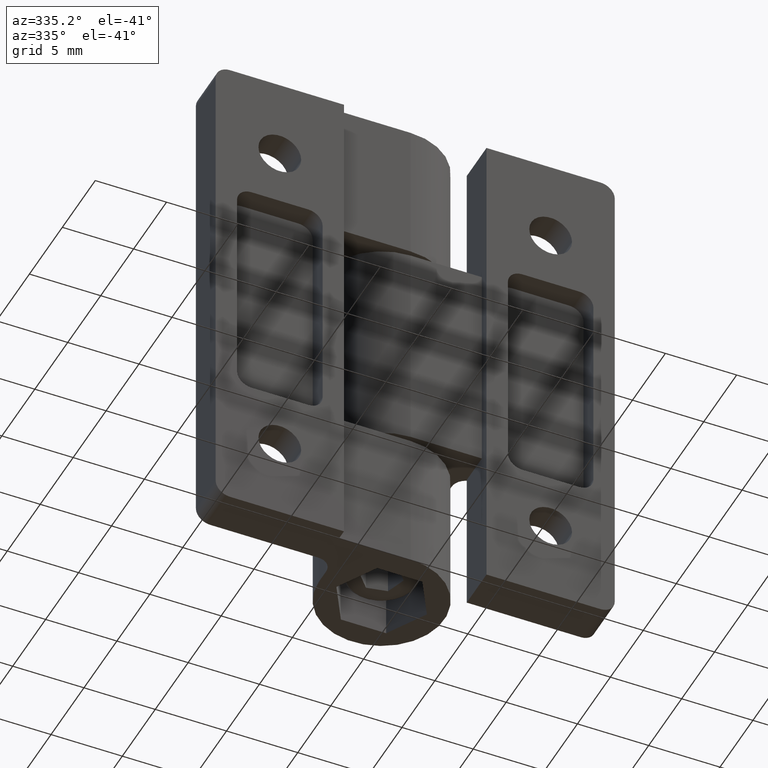
[diagram: clean part render]
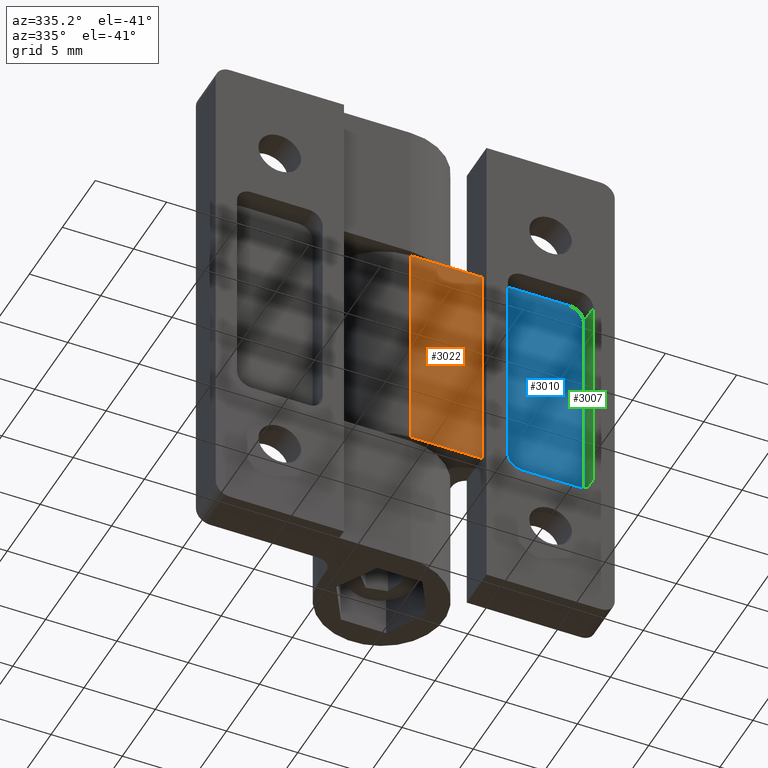
[diagram: same view with three faces highlighted in distinct colors, each labeled with its STEP entity id]
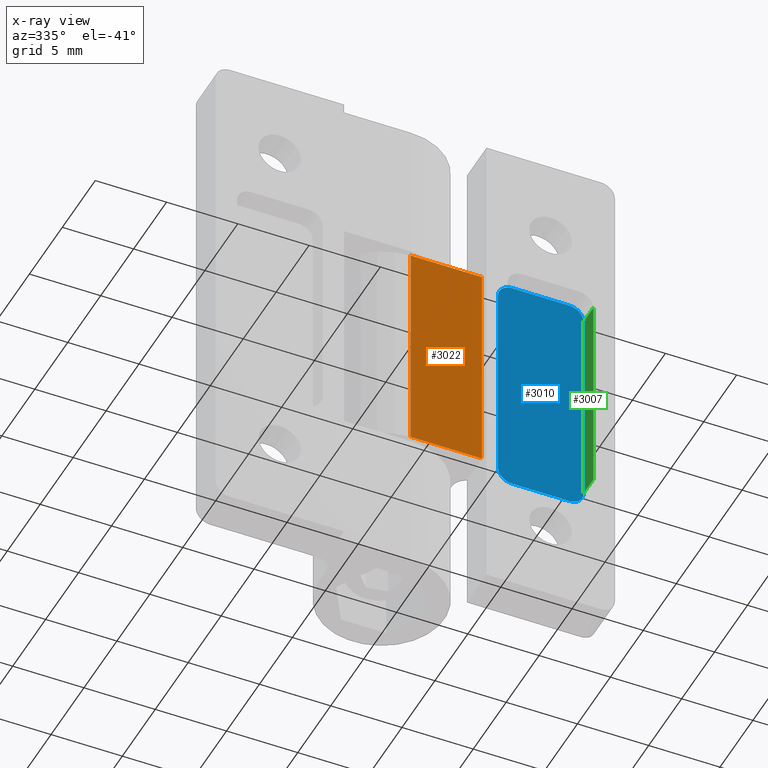
[diagram: x-ray of the same camera — body ghosted, the three highlighted faces saturated]
A machine part, auxiliary view with three faces highlighted in distinct colors.
The next image is the same camera in x-ray (body ghosted, the three faces saturated) — at least one of them is partly hidden behind the body in this view.
Their STEP definitions:

[orange] entity #3022 — the highlighted planar face has unit normal (0, -1, 0).
#409=PLANE('',#3206);
#518=FACE_OUTER_BOUND('',#668,.T.);
#668=EDGE_LOOP('',(#2872,#2873,#2874,#2875));
#799=LINE('',#33482,#955);
#802=LINE('',#33492,#958);
#824=LINE('',#33575,#980);
#825=LINE('',#33577,#981);
#955=VECTOR('',#3618,5.);
#958=VECTOR('',#3627,5.);
#980=VECTOR('',#3723,15.3);
#981=VECTOR('',#3726,15.3);
#1422=VERTEX_POINT('',#33479);
#1423=VERTEX_POINT('',#33481);
#1426=VERTEX_POINT('',#33489);
#1427=VERTEX_POINT('',#33491);
#1883=EDGE_CURVE('',#1423,#1422,#799,.T.);
#1888=EDGE_CURVE('',#1427,#1426,#802,.T.);
#1926=EDGE_CURVE('',#1426,#1423,#824,.T.);
#1927=EDGE_CURVE('',#1427,#1422,#825,.T.);
#2872=ORIENTED_EDGE('',*,*,#1883,.T.);
#2873=ORIENTED_EDGE('',*,*,#1927,.F.);
#2874=ORIENTED_EDGE('',*,*,#1888,.T.);
#2875=ORIENTED_EDGE('',*,*,#1926,.T.);
#3022=ADVANCED_FACE('',(#518),#409,.T.);
#3206=AXIS2_PLACEMENT_3D('',#33576,#3724,#3725);
#3618=DIRECTION('',(1.,0.,-8.32667268468867E-17));
#3627=DIRECTION('',(-1.,0.,8.32667268468867E-17));
#3723=DIRECTION('',(0.,1.,0.));
#3724=DIRECTION('center_axis',(-8.32667268468867E-17,0.,-1.));
#3725=DIRECTION('ref_axis',(-1.,0.,1.11022302462516E-16));
#3726=DIRECTION('',(0.,1.,0.));
#33479=CARTESIAN_POINT('',(44.9262510638286,7.65,0.699999999999999));
#33481=CARTESIAN_POINT('',(39.9262510638286,7.65,0.7));
#33482=CARTESIAN_POINT('',(42.4262510638286,7.65,0.7));
#33489=CARTESIAN_POINT('',(39.9262510638286,-7.65,0.7));
#33491=CARTESIAN_POINT('',(44.9262510638286,-7.65,0.699999999999999));
#33492=CARTESIAN_POINT('',(47.1262510638286,-7.65,0.699999999999999));
#33575=CARTESIAN_POINT('',(39.9262510638286,0.,0.7));
#33576=CARTESIAN_POINT('Origin',(44.9262510638286,0.,0.699999999999999));
#33577=CARTESIAN_POINT('',(44.9262510638286,0.,0.699999999999999));

[blue] entity #3010 — the highlighted planar face has unit normal (-0, 1, 0).
#402=PLANE('',#3188);
#506=FACE_OUTER_BOUND('',#646,.T.);
#646=EDGE_LOOP('',(#2818,#2819,#2820,#2821,#2822,#2823,#2824,#2825));
#809=LINE('',#33514,#965);
#812=LINE('',#33525,#968);
#816=LINE('',#33537,#972);
#819=LINE('',#33546,#975);
#965=VECTOR('',#3648,14.5);
#968=VECTOR('',#3659,4.);
#972=VECTOR('',#3671,14.5);
#975=VECTOR('',#3682,4.0000000000001);
#1040=CIRCLE('',#3173,1.);
#1042=CIRCLE('',#3177,1.);
#1044=CIRCLE('',#3181,1.);
#1046=CIRCLE('',#3185,1.);
#1430=VERTEX_POINT('',#33501);
#1431=VERTEX_POINT('',#33502);
#1435=VERTEX_POINT('',#33512);
#1436=VERTEX_POINT('',#33516);
#1437=VERTEX_POINT('',#33517);
#1440=VERTEX_POINT('',#33528);
#1441=VERTEX_POINT('',#33529);
#1444=VERTEX_POINT('',#33540);
#1893=EDGE_CURVE('',#1430,#1431,#1040,.T.);
#1899=EDGE_CURVE('',#1435,#1431,#809,.T.);
#1900=EDGE_CURVE('',#1436,#1437,#1042,.T.);
#1904=EDGE_CURVE('',#1430,#1437,#812,.T.);
#1906=EDGE_CURVE('',#1440,#1441,#1044,.T.);
#1910=EDGE_CURVE('',#1436,#1441,#816,.T.);
#1912=EDGE_CURVE('',#1435,#1444,#1046,.T.);
#1915=EDGE_CURVE('',#1440,#1444,#819,.T.);
#2818=ORIENTED_EDGE('',*,*,#1893,.T.);
#2819=ORIENTED_EDGE('',*,*,#1899,.F.);
#2820=ORIENTED_EDGE('',*,*,#1912,.T.);
#2821=ORIENTED_EDGE('',*,*,#1915,.F.);
#2822=ORIENTED_EDGE('',*,*,#1906,.T.);
#2823=ORIENTED_EDGE('',*,*,#1910,.F.);
#2824=ORIENTED_EDGE('',*,*,#1900,.T.);
#2825=ORIENTED_EDGE('',*,*,#1904,.F.);
#3010=ADVANCED_FACE('',(#506),#402,.F.);
#3173=AXIS2_PLACEMENT_3D('',#33503,#3638,#3639);
#3177=AXIS2_PLACEMENT_3D('',#33518,#3651,#3652);
#3181=AXIS2_PLACEMENT_3D('',#33530,#3663,#3664);
#3185=AXIS2_PLACEMENT_3D('',#33541,#3675,#3676);
#3188=AXIS2_PLACEMENT_3D('',#33548,#3684,#3685);
#3638=DIRECTION('center_axis',(0.,0.,-1.));
#3639=DIRECTION('ref_axis',(0.707106781186547,0.707106781186548,0.));
#3648=DIRECTION('',(0.,1.,0.));
#3651=DIRECTION('center_axis',(0.,0.,-1.));
#3652=DIRECTION('ref_axis',(-0.707106781186547,0.707106781186548,0.));
#3659=DIRECTION('',(-1.,3.70074341541719E-16,1.71193772834421E-33));
#3663=DIRECTION('center_axis',(0.,0.,-1.));
#3664=DIRECTION('ref_axis',(-0.707106781186547,-0.707106781186548,0.));
#3671=DIRECTION('',(0.,-1.,0.));
#3675=DIRECTION('center_axis',(0.,0.,-1.));
#3676=DIRECTION('ref_axis',(0.707106781186547,-0.707106781186548,0.));
#3682=DIRECTION('',(1.,0.,-1.71193772834421E-33));
#3684=DIRECTION('center_axis',(0.,0.,1.));
#3685=DIRECTION('ref_axis',(1.,0.,0.));
#33501=CARTESIAN_POINT('',(37.4262510638287,8.25,1.5));
#33502=CARTESIAN_POINT('',(38.4262510638287,7.25,1.5));
#33503=CARTESIAN_POINT('Origin',(37.4262510638287,7.25,1.5));
#33512=CARTESIAN_POINT('',(38.4262510638287,-7.25,1.5));
#33514=CARTESIAN_POINT('',(38.4262510638287,-8.25,1.5));
#33516=CARTESIAN_POINT('',(32.4262510638286,7.25,1.5));
#33517=CARTESIAN_POINT('',(33.4262510638287,8.25,1.5));
#33518=CARTESIAN_POINT('Origin',(33.4262510638286,7.25,1.5));
#33525=CARTESIAN_POINT('',(38.4262510638287,8.25,1.5));
#33528=CARTESIAN_POINT('',(33.4262510638286,-8.25,1.5));
#33529=CARTESIAN_POINT('',(32.4262510638286,-7.25,1.5));
#33530=CARTESIAN_POINT('Origin',(33.4262510638286,-7.25,1.5));
#33537=CARTESIAN_POINT('',(32.4262510638286,8.25,1.5));
#33540=CARTESIAN_POINT('',(37.4262510638287,-8.25,1.5));
#33541=CARTESIAN_POINT('Origin',(37.4262510638287,-7.25,1.5));
#33546=CARTESIAN_POINT('',(32.4262510638286,-8.25,1.5));
#33548=CARTESIAN_POINT('Origin',(35.4262510638287,0.,1.5));

[green] entity #3007 — the highlighted planar face has unit normal (1, 0, 0).
#400=PLANE('',#3183);
#503=FACE_OUTER_BOUND('',#643,.T.);
#643=EDGE_LOOP('',(#2806,#2807,#2808,#2809));
#810=LINE('',#33520,#966);
#815=LINE('',#33535,#971);
#816=LINE('',#33537,#972);
#817=LINE('',#33538,#973);
#966=VECTOR('',#3653,1.5);
#971=VECTOR('',#3668,1.5);
#972=VECTOR('',#3671,14.5);
#973=VECTOR('',#3672,14.5);
#1436=VERTEX_POINT('',#33516);
#1438=VERTEX_POINT('',#33519);
#1441=VERTEX_POINT('',#33529);
#1443=VERTEX_POINT('',#33533);
#1901=EDGE_CURVE('',#1436,#1438,#810,.T.);
#1909=EDGE_CURVE('',#1443,#1441,#815,.T.);
#1910=EDGE_CURVE('',#1436,#1441,#816,.T.);
#1911=EDGE_CURVE('',#1438,#1443,#817,.T.);
#2806=ORIENTED_EDGE('',*,*,#1901,.F.);
#2807=ORIENTED_EDGE('',*,*,#1910,.T.);
#2808=ORIENTED_EDGE('',*,*,#1909,.F.);
#2809=ORIENTED_EDGE('',*,*,#1911,.F.);
#3007=ADVANCED_FACE('',(#503),#400,.F.);
#3183=AXIS2_PLACEMENT_3D('',#33536,#3669,#3670);
#3653=DIRECTION('',(0.,0.,-1.));
#3668=DIRECTION('',(0.,0.,1.));
#3669=DIRECTION('center_axis',(-1.,0.,0.));
#3670=DIRECTION('ref_axis',(0.,-1.,0.));
#3671=DIRECTION('',(0.,-1.,0.));
#3672=DIRECTION('',(0.,-1.,0.));
#33516=CARTESIAN_POINT('',(32.4262510638286,7.25,1.5));
#33519=CARTESIAN_POINT('',(32.4262510638286,7.25,-2.56790659251631E-33));
#33520=CARTESIAN_POINT('',(32.4262510638286,7.25,-7.70371977754895E-33));
#33529=CARTESIAN_POINT('',(32.4262510638286,-7.25,1.5));
#33533=CARTESIAN_POINT('',(32.4262510638286,-7.25,-2.56790659251631E-33));
#33535=CARTESIAN_POINT('',(32.4262510638286,-7.25,-2.56790659251632E-33));
#33536=CARTESIAN_POINT('Origin',(32.4262510638286,8.25,-2.56790659251632E-33));
#33537=CARTESIAN_POINT('',(32.4262510638286,8.25,1.5));
#33538=CARTESIAN_POINT('',(32.4262510638286,4.125,-2.56790659251631E-33));